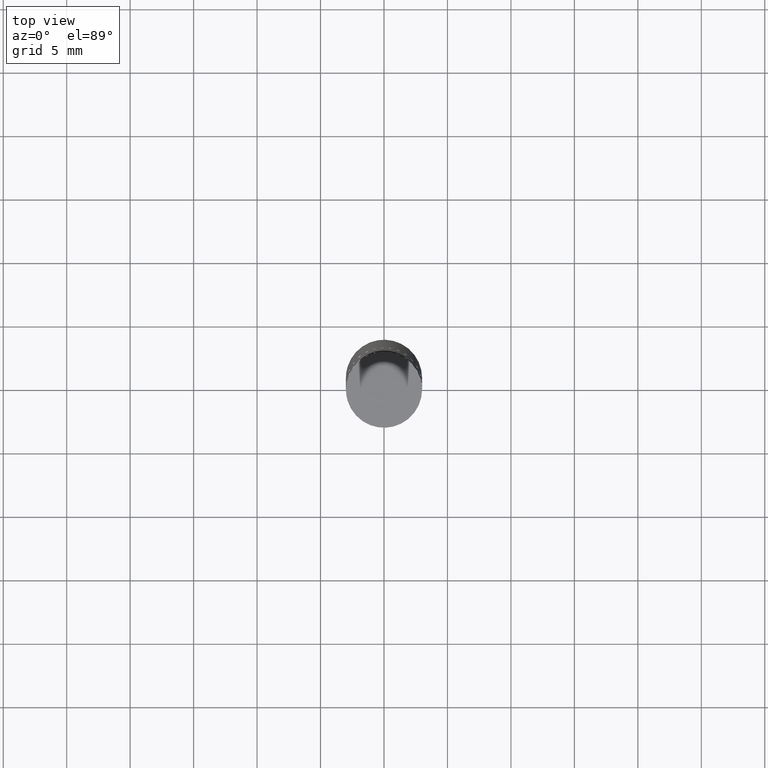
[diagram: clean part render]
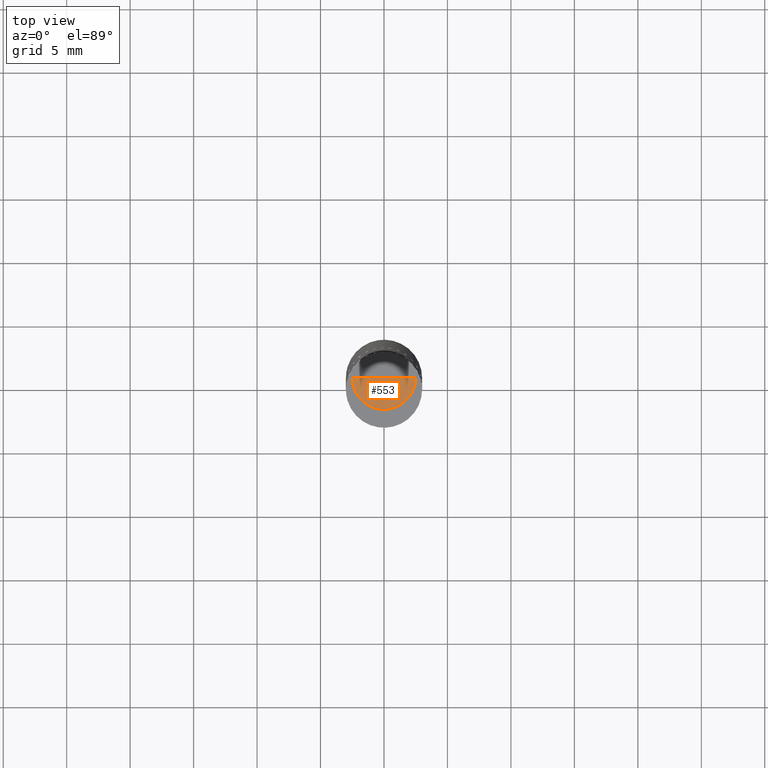
[diagram: same view with one face highlighted and labeled with its STEP entity id]
A machine part, top view. The second image highlights one B-rep face of the part: STEP entity #553.
In plain terms, the highlighted face is a freeform B-spline surface patch.
Its self-contained STEP definition (entity closure, byte-faithful):
#280=CARTESIAN_POINT('',(2.5,0.0,36.0));
#284=CARTESIAN_POINT('',(-2.5,0.0,36.0));
#285=CARTESIAN_POINT('',(0.0,0.0,36.0));
#292=CARTESIAN_POINT('',(-2.5,-2.5,36.0));
#293=CARTESIAN_POINT('',(0.0,-2.5,36.0));
#294=CARTESIAN_POINT('',(2.5,-2.5,36.0));
#538=(
BOUNDED_SURFACE()
B_SPLINE_SURFACE(1,2,(
(#284,#292,#293,#294,#280),
(#285,#285,#285,#285,#285)
), .UNSPECIFIED.,.F.,.F.,.F.)
B_SPLINE_SURFACE_WITH_KNOTS((2,2),(3,2,3),(
0.0,1.0),(
0.0,0.5,1.0), .UNSPECIFIED.)
GEOMETRIC_REPRESENTATION_ITEM()
RATIONAL_B_SPLINE_SURFACE(((1.0,0.707106781187,1.0,0.707106781187,1.0),
(1.0,0.707106781187,1.0,0.707106781187,1.0)
))
REPRESENTATION_ITEM('')
SURFACE()
);
#539=(
BOUNDED_CURVE()
B_SPLINE_CURVE(1,(#285,#280),.UNSPECIFIED.,.F.,.F.)
B_SPLINE_CURVE_WITH_KNOTS((2,2),
(0.0,1.0),.UNSPECIFIED.)
CURVE()
GEOMETRIC_REPRESENTATION_ITEM()
RATIONAL_B_SPLINE_CURVE((1.0,1.0))
REPRESENTATION_ITEM('')
);
#540=(
BOUNDED_CURVE()
B_SPLINE_CURVE(2,(#280,#294,#293,#292,#284),.UNSPECIFIED.,.F.,.F.)
B_SPLINE_CURVE_WITH_KNOTS((3,2,3),
(0.0,0.5,1.0),.UNSPECIFIED.)
CURVE()
GEOMETRIC_REPRESENTATION_ITEM()
RATIONAL_B_SPLINE_CURVE((1.0,0.707106781187,1.0,0.707106781187,1.0))
REPRESENTATION_ITEM('')
);
#541=(
BOUNDED_CURVE()
B_SPLINE_CURVE(1,(#284,#285),.UNSPECIFIED.,.F.,.F.)
B_SPLINE_CURVE_WITH_KNOTS((2,2),
(0.0,1.0),.UNSPECIFIED.)
CURVE()
GEOMETRIC_REPRESENTATION_ITEM()
RATIONAL_B_SPLINE_CURVE((1.0,1.0))
REPRESENTATION_ITEM('')
);
#542=VERTEX_POINT('',#280);
#543=VERTEX_POINT('',#284);
#544=VERTEX_POINT('',#285);
#545=EDGE_CURVE('',#544,#542,#539,.T.);
#546=EDGE_CURVE('',#542,#543,#540,.T.);
#547=EDGE_CURVE('',#543,#544,#541,.T.);
#548=ORIENTED_EDGE('',*,*,#545,.T.);
#549=ORIENTED_EDGE('',*,*,#546,.T.);
#550=ORIENTED_EDGE('',*,*,#547,.T.);
#551=EDGE_LOOP('',(#548,#549,#550));
#552=FACE_OUTER_BOUND('',#551,.T.);
#553=ADVANCED_FACE('',(#552),#538,.T.);